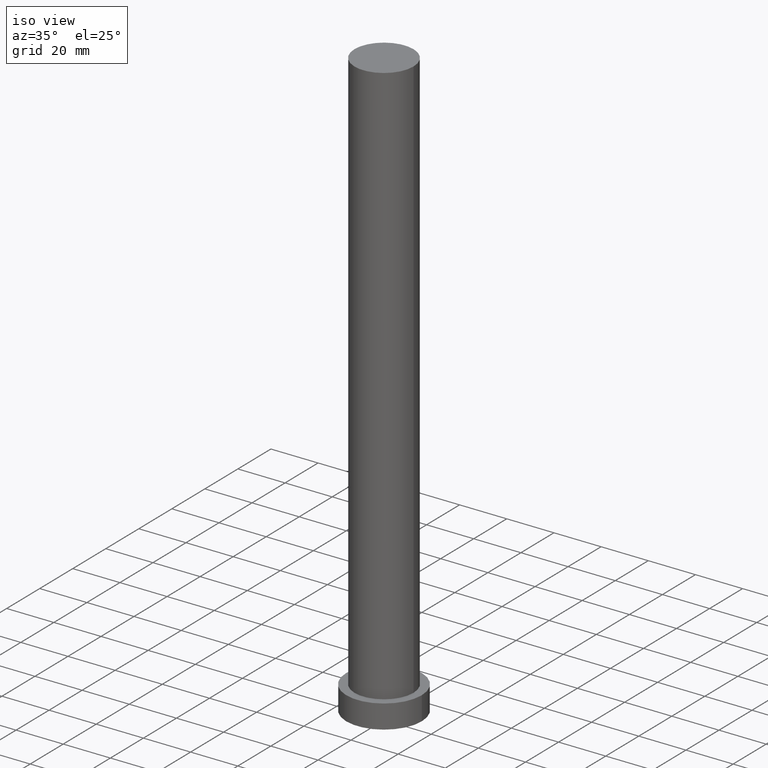
[diagram: clean part render]
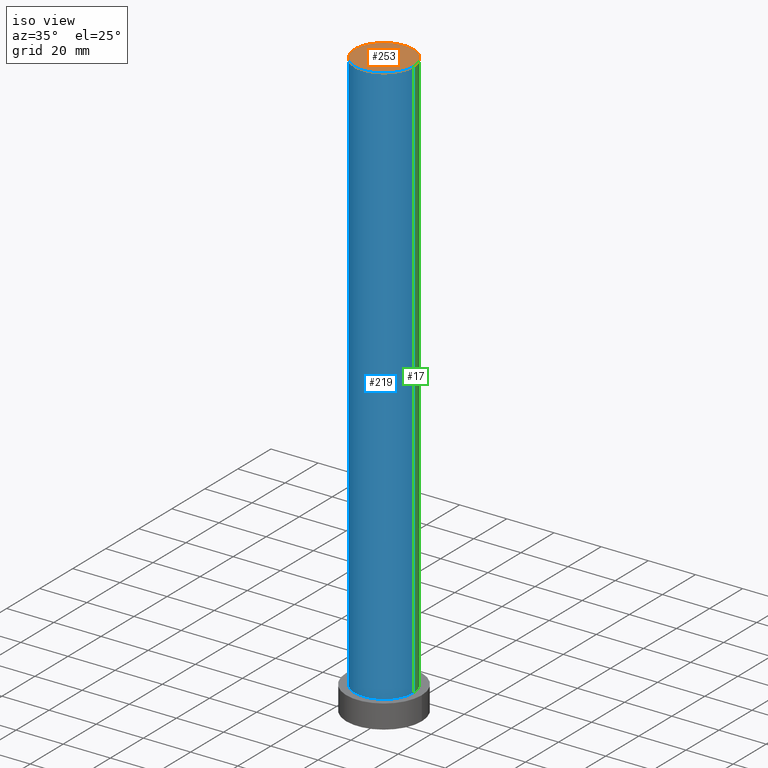
[diagram: same view with three faces highlighted in distinct colors, each labeled with its STEP entity id]
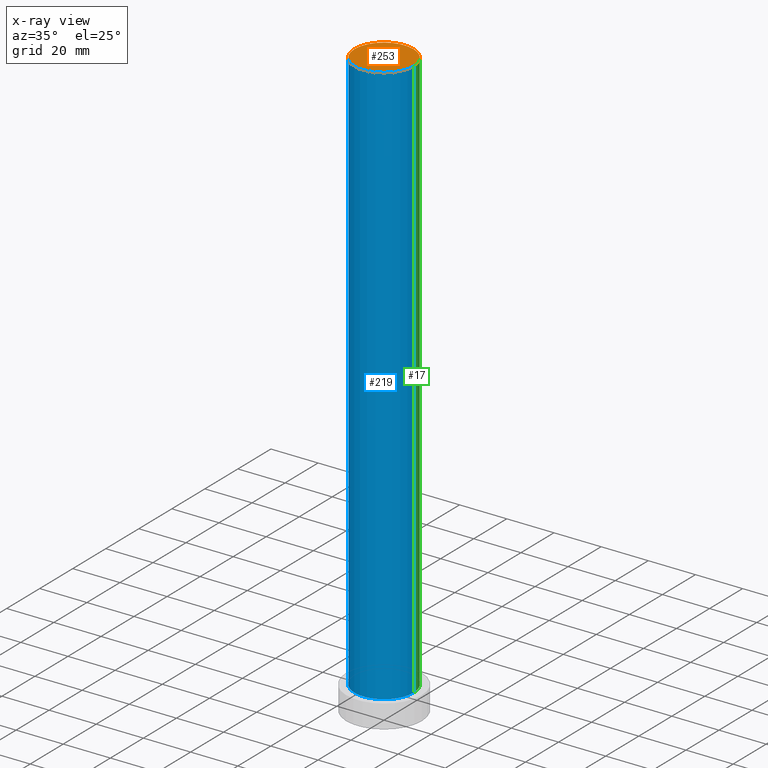
[diagram: x-ray of the same camera — body ghosted, the three highlighted faces saturated]
A machine part, iso view with three faces highlighted in distinct colors.
The next image is the same camera in x-ray (body ghosted, the three faces saturated) — at least one of them is partly hidden behind the body in this view.
Their STEP definitions:

[orange] entity #253 — the highlighted planar face has unit normal (0, 0, 1).
#5 = ORIENTED_EDGE ( 'NONE', *, *, #12, .T. ) ;
#12 = EDGE_CURVE ( 'NONE', #212, #110, #107, .T. ) ;
#24 = CIRCLE ( 'NONE', #88, 12.50000000000000000 ) ;
#43 = EDGE_LOOP ( 'NONE', ( #97, #5 ) ) ;
#45 = CARTESIAN_POINT ( 'NONE',  ( 12.50000000000000000, 1.530808498934191521E-15, 250.0000000000000000 ) ) ;
#78 = CARTESIAN_POINT ( 'NONE',  ( 0.000000000000000000, 0.000000000000000000, 250.0000000000000000 ) ) ;
#82 = EDGE_CURVE ( 'NONE', #110, #212, #24, .T. ) ;
#83 = CARTESIAN_POINT ( 'NONE',  ( 0.000000000000000000, 0.000000000000000000, 250.0000000000000000 ) ) ;
#88 = AXIS2_PLACEMENT_3D ( 'NONE', #78, #131, #211 ) ;
#96 = DIRECTION ( 'NONE',  ( 1.000000000000000000, 0.000000000000000000, -0.000000000000000000 ) ) ;
#97 = ORIENTED_EDGE ( 'NONE', *, *, #82, .T. ) ;
#107 = CIRCLE ( 'NONE', #232, 12.50000000000000000 ) ;
#110 = VERTEX_POINT ( 'NONE', #189 ) ;
#117 = FACE_OUTER_BOUND ( 'NONE', #43, .T. ) ;
#131 = DIRECTION ( 'NONE',  ( 0.000000000000000000, 0.000000000000000000, 1.000000000000000000 ) ) ;
#160 = DIRECTION ( 'NONE',  ( 0.000000000000000000, 0.000000000000000000, 1.000000000000000000 ) ) ;
#189 = CARTESIAN_POINT ( 'NONE',  ( -12.50000000000000000, 0.000000000000000000, 250.0000000000000000 ) ) ;
#202 = AXIS2_PLACEMENT_3D ( 'NONE', #245, #222, #96 ) ;
#211 = DIRECTION ( 'NONE',  ( 1.000000000000000000, 0.000000000000000000, 0.000000000000000000 ) ) ;
#212 = VERTEX_POINT ( 'NONE', #45 ) ;
#222 = DIRECTION ( 'NONE',  ( 0.000000000000000000, 0.000000000000000000, 1.000000000000000000 ) ) ;
#223 = PLANE ( 'NONE',  #202 ) ;
#232 = AXIS2_PLACEMENT_3D ( 'NONE', #83, #160, #243 ) ;
#243 = DIRECTION ( 'NONE',  ( 1.000000000000000000, 0.000000000000000000, 0.000000000000000000 ) ) ;
#245 = CARTESIAN_POINT ( 'NONE',  ( 0.000000000000000000, 0.000000000000000000, 250.0000000000000000 ) ) ;
#253 = ADVANCED_FACE ( 'NONE', ( #117 ), #223, .T. ) ;

[blue] entity #219 — the highlighted cylindrical surface (edge-blend (fillet) strip) has radius 12.5 mm, axis along (-0, -0, -1).
#2 = ORIENTED_EDGE ( 'NONE', *, *, #114, .T. ) ;
#8 = DIRECTION ( 'NONE',  ( -0.000000000000000000, -0.000000000000000000, -1.000000000000000000 ) ) ;
#14 = DIRECTION ( 'NONE',  ( 1.000000000000000000, 0.000000000000000000, 0.000000000000000000 ) ) ;
#24 = CIRCLE ( 'NONE', #88, 12.50000000000000000 ) ;
#25 = DIRECTION ( 'NONE',  ( -1.000000000000000000, 0.000000000000000000, 0.000000000000000000 ) ) ;
#28 = CYLINDRICAL_SURFACE ( 'NONE', #241, 12.50000000000000000 ) ;
#39 = CARTESIAN_POINT ( 'NONE',  ( 12.50000000000000000, 1.530808498934191521E-15, 250.0000000000000000 ) ) ;
#45 = CARTESIAN_POINT ( 'NONE',  ( 12.50000000000000000, 1.530808498934191521E-15, 250.0000000000000000 ) ) ;
#65 = CARTESIAN_POINT ( 'NONE',  ( 0.000000000000000000, 0.000000000000000000, 250.0000000000000000 ) ) ;
#75 = CARTESIAN_POINT ( 'NONE',  ( 12.50000000000000000, 1.530808498934191521E-15, 10.00000000000000000 ) ) ;
#78 = CARTESIAN_POINT ( 'NONE',  ( 0.000000000000000000, 0.000000000000000000, 250.0000000000000000 ) ) ;
#82 = EDGE_CURVE ( 'NONE', #110, #212, #24, .T. ) ;
#88 = AXIS2_PLACEMENT_3D ( 'NONE', #78, #131, #211 ) ;
#92 = DIRECTION ( 'NONE',  ( 0.000000000000000000, 0.000000000000000000, 1.000000000000000000 ) ) ;
#101 = CARTESIAN_POINT ( 'NONE',  ( -12.50000000000000000, 0.000000000000000000, 250.0000000000000000 ) ) ;
#110 = VERTEX_POINT ( 'NONE', #189 ) ;
#114 = EDGE_CURVE ( 'NONE', #237, #140, #200, .T. ) ;
#131 = DIRECTION ( 'NONE',  ( 0.000000000000000000, 0.000000000000000000, 1.000000000000000000 ) ) ;
#139 = ORIENTED_EDGE ( 'NONE', *, *, #191, .F. ) ;
#140 = VERTEX_POINT ( 'NONE', #75 ) ;
#159 = DIRECTION ( 'NONE',  ( -0.000000000000000000, -0.000000000000000000, -1.000000000000000000 ) ) ;
#162 = FACE_OUTER_BOUND ( 'NONE', #229, .T. ) ;
#163 = AXIS2_PLACEMENT_3D ( 'NONE', #213, #92, #14 ) ;
#188 = VECTOR ( 'NONE', #159, 1000.000000000000000 ) ;
#189 = CARTESIAN_POINT ( 'NONE',  ( -12.50000000000000000, 0.000000000000000000, 250.0000000000000000 ) ) ;
#191 = EDGE_CURVE ( 'NONE', #212, #140, #216, .T. ) ;
#194 = VECTOR ( 'NONE', #235, 1000.000000000000000 ) ;
#198 = LINE ( 'NONE', #101, #188 ) ;
#200 = CIRCLE ( 'NONE', #163, 12.50000000000000000 ) ;
#207 = EDGE_CURVE ( 'NONE', #110, #237, #198, .T. ) ;
#211 = DIRECTION ( 'NONE',  ( 1.000000000000000000, 0.000000000000000000, 0.000000000000000000 ) ) ;
#212 = VERTEX_POINT ( 'NONE', #45 ) ;
#213 = CARTESIAN_POINT ( 'NONE',  ( 0.000000000000000000, 0.000000000000000000, 10.00000000000000000 ) ) ;
#215 = ORIENTED_EDGE ( 'NONE', *, *, #207, .T. ) ;
#216 = LINE ( 'NONE', #39, #194 ) ;
#217 = ORIENTED_EDGE ( 'NONE', *, *, #82, .F. ) ;
#219 = ADVANCED_FACE ( 'NONE', ( #162 ), #28, .T. ) ;
#229 = EDGE_LOOP ( 'NONE', ( #139, #217, #215, #2 ) ) ;
#235 = DIRECTION ( 'NONE',  ( -0.000000000000000000, -0.000000000000000000, -1.000000000000000000 ) ) ;
#237 = VERTEX_POINT ( 'NONE', #242 ) ;
#241 = AXIS2_PLACEMENT_3D ( 'NONE', #65, #8, #25 ) ;
#242 = CARTESIAN_POINT ( 'NONE',  ( -12.50000000000000000, 0.000000000000000000, 10.00000000000000000 ) ) ;

[green] entity #17 — the highlighted cylindrical surface (edge-blend (fillet) strip) has radius 12.5 mm, axis along (-0, -0, -1).
#12 = EDGE_CURVE ( 'NONE', #212, #110, #107, .T. ) ;
#17 = ADVANCED_FACE ( 'NONE', ( #26 ), #49, .T. ) ;
#26 = FACE_OUTER_BOUND ( 'NONE', #208, .T. ) ;
#31 = DIRECTION ( 'NONE',  ( -1.000000000000000000, 0.000000000000000000, 0.000000000000000000 ) ) ;
#39 = CARTESIAN_POINT ( 'NONE',  ( 12.50000000000000000, 1.530808498934191521E-15, 250.0000000000000000 ) ) ;
#41 = ORIENTED_EDGE ( 'NONE', *, *, #250, .T. ) ;
#45 = CARTESIAN_POINT ( 'NONE',  ( 12.50000000000000000, 1.530808498934191521E-15, 250.0000000000000000 ) ) ;
#49 = CYLINDRICAL_SURFACE ( 'NONE', #98, 12.50000000000000000 ) ;
#50 = CARTESIAN_POINT ( 'NONE',  ( 0.000000000000000000, 0.000000000000000000, 250.0000000000000000 ) ) ;
#61 = ORIENTED_EDGE ( 'NONE', *, *, #191, .T. ) ;
#71 = CIRCLE ( 'NONE', #143, 12.50000000000000000 ) ;
#75 = CARTESIAN_POINT ( 'NONE',  ( 12.50000000000000000, 1.530808498934191521E-15, 10.00000000000000000 ) ) ;
#83 = CARTESIAN_POINT ( 'NONE',  ( 0.000000000000000000, 0.000000000000000000, 250.0000000000000000 ) ) ;
#98 = AXIS2_PLACEMENT_3D ( 'NONE', #50, #203, #31 ) ;
#101 = CARTESIAN_POINT ( 'NONE',  ( -12.50000000000000000, 0.000000000000000000, 250.0000000000000000 ) ) ;
#107 = CIRCLE ( 'NONE', #232, 12.50000000000000000 ) ;
#110 = VERTEX_POINT ( 'NONE', #189 ) ;
#116 = ORIENTED_EDGE ( 'NONE', *, *, #12, .F. ) ;
#140 = VERTEX_POINT ( 'NONE', #75 ) ;
#142 = DIRECTION ( 'NONE',  ( 1.000000000000000000, 0.000000000000000000, 0.000000000000000000 ) ) ;
#143 = AXIS2_PLACEMENT_3D ( 'NONE', #239, #144, #142 ) ;
#144 = DIRECTION ( 'NONE',  ( 0.000000000000000000, 0.000000000000000000, 1.000000000000000000 ) ) ;
#159 = DIRECTION ( 'NONE',  ( -0.000000000000000000, -0.000000000000000000, -1.000000000000000000 ) ) ;
#160 = DIRECTION ( 'NONE',  ( 0.000000000000000000, 0.000000000000000000, 1.000000000000000000 ) ) ;
#188 = VECTOR ( 'NONE', #159, 1000.000000000000000 ) ;
#189 = CARTESIAN_POINT ( 'NONE',  ( -12.50000000000000000, 0.000000000000000000, 250.0000000000000000 ) ) ;
#191 = EDGE_CURVE ( 'NONE', #212, #140, #216, .T. ) ;
#194 = VECTOR ( 'NONE', #235, 1000.000000000000000 ) ;
#198 = LINE ( 'NONE', #101, #188 ) ;
#203 = DIRECTION ( 'NONE',  ( -0.000000000000000000, -0.000000000000000000, -1.000000000000000000 ) ) ;
#207 = EDGE_CURVE ( 'NONE', #110, #237, #198, .T. ) ;
#208 = EDGE_LOOP ( 'NONE', ( #116, #61, #41, #230 ) ) ;
#212 = VERTEX_POINT ( 'NONE', #45 ) ;
#216 = LINE ( 'NONE', #39, #194 ) ;
#230 = ORIENTED_EDGE ( 'NONE', *, *, #207, .F. ) ;
#232 = AXIS2_PLACEMENT_3D ( 'NONE', #83, #160, #243 ) ;
#235 = DIRECTION ( 'NONE',  ( -0.000000000000000000, -0.000000000000000000, -1.000000000000000000 ) ) ;
#237 = VERTEX_POINT ( 'NONE', #242 ) ;
#239 = CARTESIAN_POINT ( 'NONE',  ( 0.000000000000000000, 0.000000000000000000, 10.00000000000000000 ) ) ;
#242 = CARTESIAN_POINT ( 'NONE',  ( -12.50000000000000000, 0.000000000000000000, 10.00000000000000000 ) ) ;
#243 = DIRECTION ( 'NONE',  ( 1.000000000000000000, 0.000000000000000000, 0.000000000000000000 ) ) ;
#250 = EDGE_CURVE ( 'NONE', #140, #237, #71, .T. ) ;